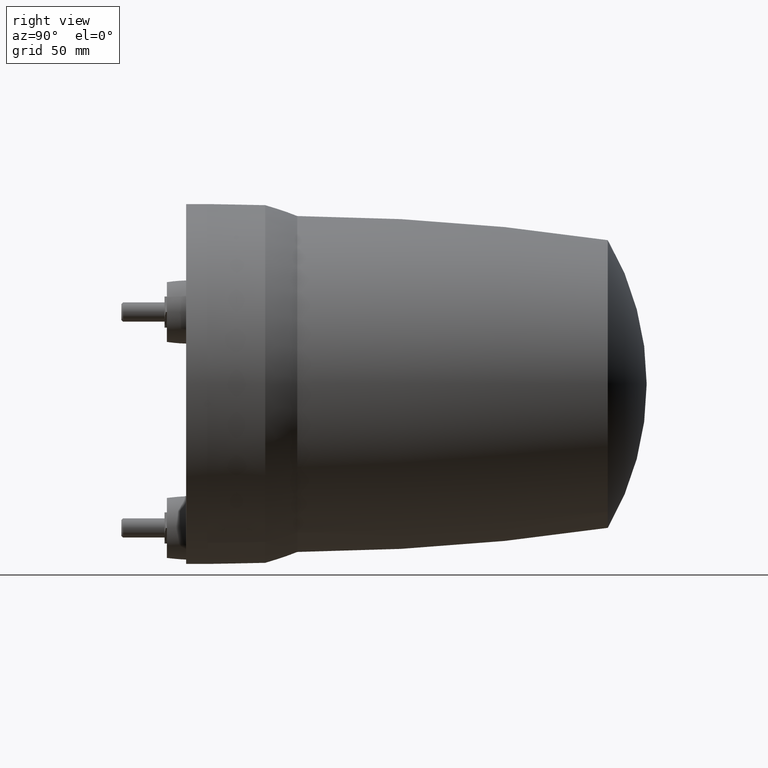
[diagram: clean part render]
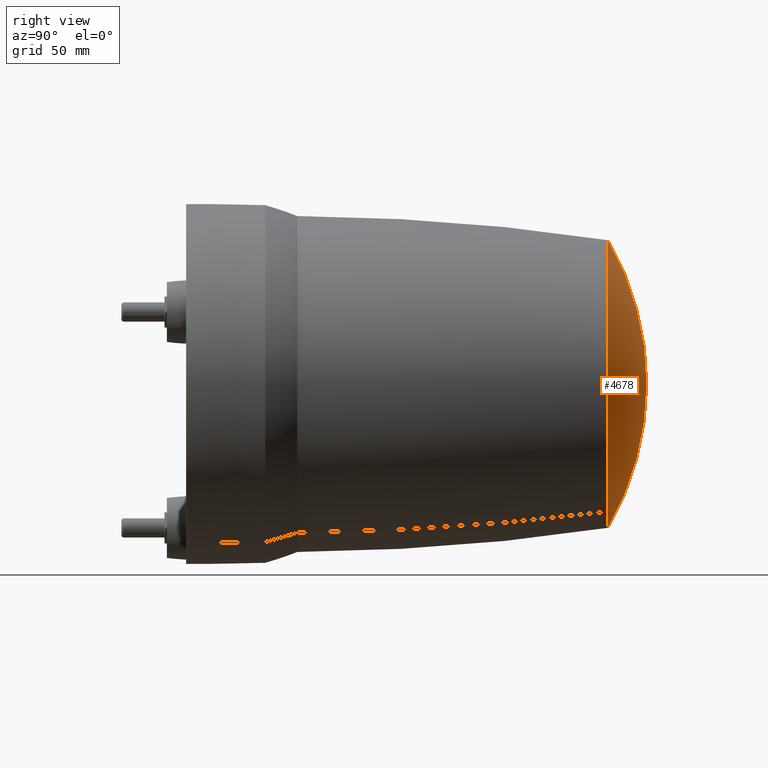
[diagram: same view with one face highlighted and labeled with its STEP entity id]
A machine part, right view. The second image highlights one B-rep face of the part: STEP entity #4678.
In plain terms, the highlighted spherical surface has radius 120 mm.
Its self-contained STEP definition (entity closure, byte-faithful):
#112 = DIRECTION ( 'NONE',  ( -0.4697009179250238864, -1.156482317317871232E-16, 0.8828256043525187780 ) ) ;
#595 = DIRECTION ( 'NONE',  ( -0.4697009179250243305, 0.000000000000000000, 0.8828256043525186669 ) ) ;
#936 = ORIENTED_EDGE ( 'NONE', *, *, #4029, .F. ) ;
#1062 = AXIS2_PLACEMENT_3D ( 'NONE', #2451, #1737, #3926 ) ;
#1229 = EDGE_LOOP ( 'NONE', ( #4335, #936 ) ) ;
#1300 = CARTESIAN_POINT ( 'NONE',  ( -1.695424884558989830E-15, 184.7802510757699963, 3.825679464475854360E-14 ) ) ;
#1668 = DIRECTION ( 'NONE',  ( 0.000000000000000000, -1.000000000000000000, 0.000000000000000000 ) ) ;
#1737 = DIRECTION ( 'NONE',  ( 0.000000000000000000, -1.000000000000000000, 0.000000000000000000 ) ) ;
#1906 = VERTEX_POINT ( 'NONE', #2856 ) ;
#1951 = SPHERICAL_SURFACE ( 'NONE', #2514, 120.0000000000000000 ) ;
#1984 = VERTEX_POINT ( 'NONE', #4718 ) ;
#2142 = CIRCLE ( 'NONE', #1062, 60.24665539804175296 ) ;
#2246 = CARTESIAN_POINT ( 'NONE',  ( 6.851344570883470358E-15, 81.00000000000000000, 2.219272786989424925E-14 ) ) ;
#2269 = FACE_OUTER_BOUND ( 'NONE', #1229, .T. ) ;
#2451 = CARTESIAN_POINT ( 'NONE',  ( -1.695424884558989830E-15, 184.7802510757699963, 3.825679464475854360E-14 ) ) ;
#2459 = CIRCLE ( 'NONE', #3849, 60.24665539804175296 ) ;
#2514 = AXIS2_PLACEMENT_3D ( 'NONE', #2246, #3738, #112 ) ;
#2856 = CARTESIAN_POINT ( 'NONE',  ( -28.29790934237279387, 184.7802510757699963, 53.18728996199419612 ) ) ;
#3528 = EDGE_CURVE ( 'NONE', #1906, #1984, #2142, .T. ) ;
#3738 = DIRECTION ( 'NONE',  ( 5.432008060082629276E-17, -1.000000000000000000, -1.020972200709150998E-16 ) ) ;
#3849 = AXIS2_PLACEMENT_3D ( 'NONE', #1300, #1668, #595 ) ;
#3926 = DIRECTION ( 'NONE',  ( -0.4697009179250243305, 0.000000000000000000, 0.8828256043525186669 ) ) ;
#4029 = EDGE_CURVE ( 'NONE', #1984, #1906, #2459, .T. ) ;
#4335 = ORIENTED_EDGE ( 'NONE', *, *, #3528, .F. ) ;
#4678 = ADVANCED_FACE ( 'NONE', ( #2269 ), #1951, .T. ) ;
#4718 = CARTESIAN_POINT ( 'NONE',  ( 28.29790934237277966, 184.7802510757699963, -53.18728996199416059 ) ) ;